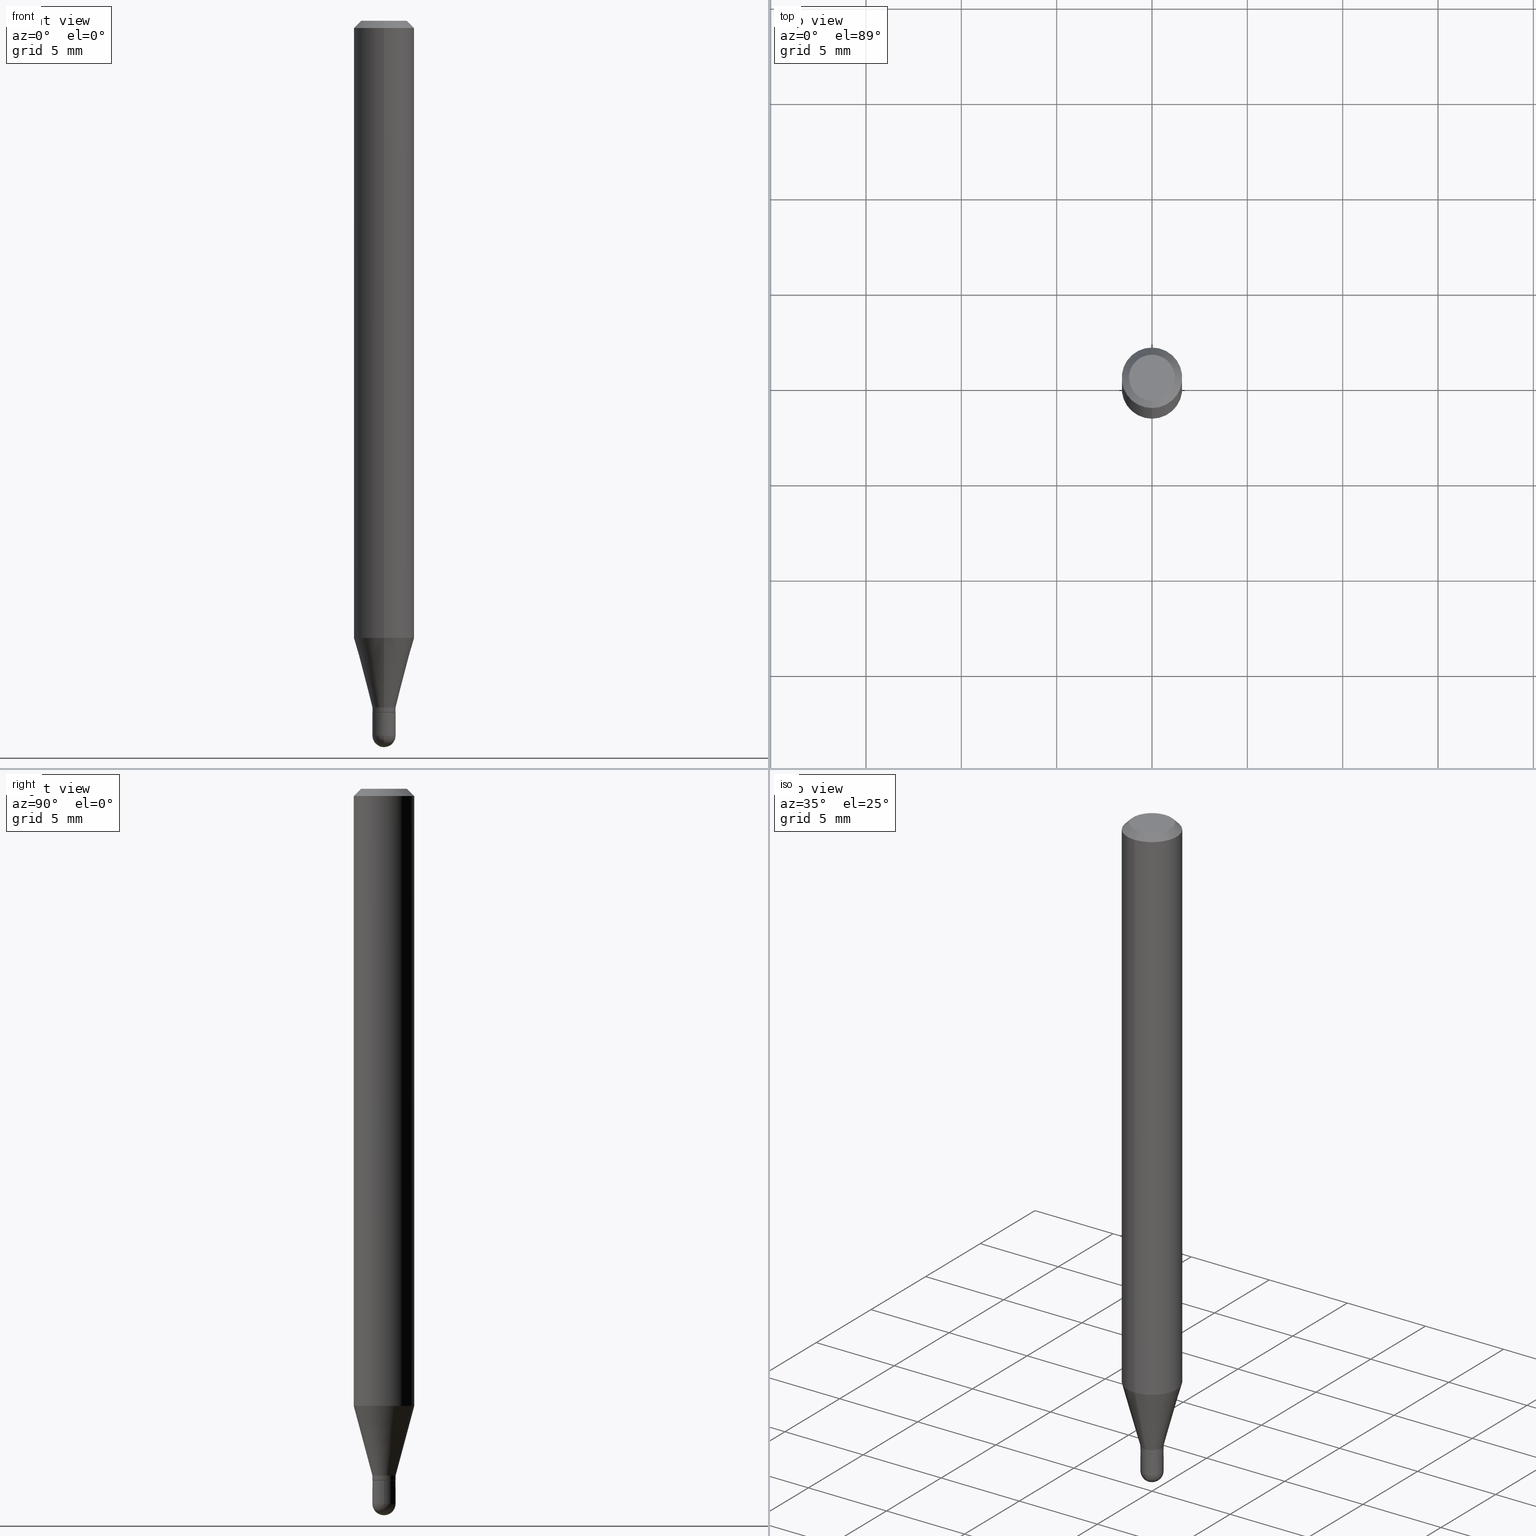
[diagram: canonical four-view strip — front | top / right | iso, engineering-drawing reading convention]
A machine part, canonical four-view strip (front | top / right | iso — engineering-drawing reading convention). The complete STEP part file that produces these views, byte-faithful:
ISO-10303-21;
HEADER;
FILE_DESCRIPTION (( 'STEP AP203' ),
    '1' );
FILE_NAME ('00783.STEP',
    '2024-03-07T18:20:18',
    ( '' ),
    ( '' ),
    'SwSTEP 2.0',
    'SolidWorks 2023',
    '' );
FILE_SCHEMA (( 'CONFIG_CONTROL_DESIGN' ));
ENDSEC;

DATA;
#1 = CARTESIAN_POINT ( 'NONE',  ( 3.492147879207516630E-29, -4.985808967686983151E-15, -1.428000000000000158 ) ) ;
#2 = EDGE_CURVE ( 'NONE', #256, #21, #188, .T. ) ;
#3 = PLANE ( 'NONE',  #389 ) ;
#4 = LINE ( 'NONE', #446, #461 ) ;
#5 = AXIS2_PLACEMENT_3D ( 'NONE', #249, #132, #172 ) ;
#6 = CARTESIAN_POINT ( 'NONE',  ( 0.000000000000000000, 0.000000000000000000, 0.000000000000000000 ) ) ;
#7 = CARTESIAN_POINT ( 'NONE',  ( -3.773273898774340269E-16, -0.04749999999999999362, 1.569832887530797755E-16 ) ) ;
#8 = ORIENTED_EDGE ( 'NONE', *, *, #218, .F. ) ;
#9 = CALENDAR_DATE ( 2024, 7, 3 ) ;
#10 = DIRECTION ( 'NONE',  ( -6.982962677686265922E-15, -1.000000000000000000, 3.483106191921935554E-15 ) ) ;
#11 = CARTESIAN_POINT ( 'NONE',  ( 3.668222562192771468E-31, -5.237194293788850043E-17, -0.01500000000000000812 ) ) ;
#12 = ORIENTED_EDGE ( 'NONE', *, *, #257, .T. ) ;
#13 = VECTOR ( 'NONE', #28, 39.37007874015748143 ) ;
#14 = MANIFOLD_SOLID_BREP ( 'Body-Move/Copy2[2]', #477 ) ;
#15 = LINE ( 'NONE', #206, #374 ) ;
#16 = FACE_OUTER_BOUND ( 'NONE', #269, .T. ) ;
#17 = ORIENTED_EDGE ( 'NONE', *, *, #38, .T. ) ;
#18 = APPROVAL_STATUS ( 'not_yet_approved' ) ;
#19 = DIRECTION ( 'NONE',  ( -2.445468806185136597E-29, 3.491481338843145583E-15, 1.000000000000000000 ) ) ;
#20 = LENGTH_MEASURE_WITH_UNIT ( LENGTH_MEASURE( 0.02539999999999999897 ), #294 );
#21 = VERTEX_POINT ( 'NONE', #304 ) ;
#22 = DATE_AND_TIME ( #369, #254 ) ;
#23 = EDGE_CURVE ( 'NONE', #282, #259, #124, .T. ) ;
#24 = ORIENTED_EDGE ( 'NONE', *, *, #141, .T. ) ;
#25 = AXIS2_PLACEMENT_3D ( 'NONE', #360, #240, #355 ) ;
#26 = EDGE_CURVE ( 'NONE', #256, #50, #342, .T. ) ;
#27 = MECHANICAL_CONTEXT ( 'NONE', #128, 'mechanical' ) ;
#28 = DIRECTION ( 'NONE',  ( -4.937700262164674260E-15, -0.7071067811865632269, 0.7071067811865319186 ) ) ;
#29 = DIRECTION ( 'NONE',  ( -2.445481708128512584E-29, 3.491462862525897925E-15, 1.000000000000000000 ) ) ;
#30 = APPROVAL_DATE_TIME ( #378, #314 ) ;
#31 = ORIENTED_EDGE ( 'NONE', *, *, #287, .T. ) ;
#32 = FACE_OUTER_BOUND ( 'NONE', #216, .T. ) ;
#33 = DIRECTION ( 'NONE',  ( 1.000000000000000000, -6.982962677686250144E-15, 0.000000000000000000 ) ) ;
#34 = AXIS2_PLACEMENT_3D ( 'NONE', #272, #434, #276 ) ;
#35 = ORGANIZATION ( 'UNSPECIFIED', 'UNSPECIFIED', '' ) ;
#36 = ORIENTED_EDGE ( 'NONE', *, *, #339, .F. ) ;
#37 = DIRECTION ( 'NONE',  ( -2.445481708128512584E-29, 3.491462862525897925E-15, 1.000000000000000000 ) ) ;
#38 = EDGE_CURVE ( 'NONE', #138, #482, #98, .T. ) ;
#39 = DIRECTION ( 'NONE',  ( -2.445481708128512584E-29, 3.491462862525897925E-15, 1.000000000000000000 ) ) ;
#40 = AXIS2_PLACEMENT_3D ( 'NONE', #416, #62, #267 ) ;
#41 = CARTESIAN_POINT ( 'NONE',  ( 3.667177009730690077E-29, -5.238691584423694948E-15, -1.500000000000000222 ) ) ;
#42 = CARTESIAN_POINT ( 'NONE',  ( 0.02400000000000000397, -1.675911042644704316E-16, 1.170282426191024667E-30 ) ) ;
#43 = EDGE_CURVE ( 'NONE', #21, #226, #408, .T. ) ;
#44 = DIRECTION ( 'NONE',  ( 6.982962677686265922E-15, 1.000000000000000000, -3.491462862525897925E-15 ) ) ;
#45 = CIRCLE ( 'NONE', #79, 0.02400000000000000397 ) ;
#46 = DIRECTION ( 'NONE',  ( 1.000000000000000000, -6.982962677686266711E-15, 4.876176775795935232E-29 ) ) ;
#47 = ORIENTED_EDGE ( 'NONE', *, *, #341, .F. ) ;
#48 = SECURITY_CLASSIFICATION ( '', '', #300 ) ;
#49 = DIRECTION ( 'NONE',  ( -1.000000000000000000, 6.982962677686265922E-15, -4.876176775795935793E-29 ) ) ;
#50 = VERTEX_POINT ( 'NONE', #313 ) ;
#51 = DIRECTION ( 'NONE',  ( -2.445481708128512584E-29, 3.491462862525897925E-15, 1.000000000000000000 ) ) ;
#52 = DIRECTION ( 'NONE',  ( 4.937700262164548042E-15, 0.7071067811865451302, -0.7071067811865499042 ) ) ;
#53 = ORIENTED_EDGE ( 'NONE', *, *, #119, .T. ) ;
#54 = CARTESIAN_POINT ( 'NONE',  ( 2.166989570604911121E-46, -3.093854100032544712E-32, -8.861197216900356760E-18 ) ) ;
#55 = ORIENTED_EDGE ( 'NONE', *, *, #23, .T. ) ;
#56 = PERSON_AND_ORGANIZATION ( #84, #35 ) ;
#57 = DIRECTION ( 'NONE',  ( -2.445468806185136597E-29, 3.491481338843145583E-15, 1.000000000000000000 ) ) ;
#58 = PERSON_AND_ORGANIZATION_ROLE ( 'classification_officer' ) ;
#59 = CARTESIAN_POINT ( 'NONE',  ( 0.000000000000000000, 0.000000000000000000, 0.000000000000000000 ) ) ;
#60 = ORIENTED_EDGE ( 'NONE', *, *, #43, .F. ) ;
#61 = SHAPE_DEFINITION_REPRESENTATION ( #175, #292 ) ;
#62 = DIRECTION ( 'NONE',  ( -2.445468806185136597E-29, 3.491481338843145583E-15, 1.000000000000000000 ) ) ;
#63 = AXIS2_PLACEMENT_3D ( 'NONE', #238, #387, #316 ) ;
#64 = VECTOR ( 'NONE', #367, 39.37007874015748143 ) ;
#65 = APPROVAL_STATUS ( 'not_yet_approved' ) ;
#66 = EDGE_CURVE ( 'NONE', #217, #449, #442, .T. ) ;
#67 = ORIENTED_EDGE ( 'NONE', *, *, #76, .T. ) ;
#68 =( CONVERSION_BASED_UNIT ( 'INCH', #20 ) LENGTH_UNIT ( ) NAMED_UNIT ( #137 ) );
#69 = ORIENTED_EDGE ( 'NONE', *, *, #324, .F. ) ;
#70 = ADVANCED_FACE ( 'NONE', ( #81 ), #166, .T. ) ;
#71 = FACE_OUTER_BOUND ( 'NONE', #295, .T. ) ;
#72 = EDGE_LOOP ( 'NONE', ( #245, #67, #17, #485 ) ) ;
#73 = CARTESIAN_POINT ( 'NONE',  ( -1.675911042644352041E-16, -0.02400000000000487854, -1.417999999999999927 ) ) ;
#74 = AXIS2_PLACEMENT_3D ( 'NONE', #54, #125, #398 ) ;
#75 = FACE_OUTER_BOUND ( 'NONE', #451, .T. ) ;
#76 = EDGE_CURVE ( 'NONE', #480, #138, #333, .T. ) ;
#77 = DIRECTION ( 'NONE',  ( 5.024295867788190974E-15, 0.7071067811865681119, 0.7071067811865270336 ) ) ;
#78 = DIRECTION ( 'NONE',  ( -6.982962677686265133E-15, -1.000000000000000000, 0.000000000000000000 ) ) ;
#79 = AXIS2_PLACEMENT_3D ( 'NONE', #509, #231, #151 ) ;
#80 = CIRCLE ( 'NONE', #113, 0.02400000000000000397 ) ;
#81 = FACE_OUTER_BOUND ( 'NONE', #376, .T. ) ;
#82 = ADVANCED_FACE ( 'NONE', ( #508 ), #3, .F. ) ;
#83 = CARTESIAN_POINT ( 'NONE',  ( 3.467693062126230447E-29, -4.950894339061723592E-15, -1.417999999999999927 ) ) ;
#84 = PERSON ( 'UNSPECIFIED', 'UNSPECIFIED', 'UNSPECIFIED', ('UNSPECIFIED'), ('UNSPECIFIED'), ('UNSPECIFIED') ) ;
#85 = AXIS2_PLACEMENT_3D ( 'NONE', #1, #198, #430 ) ;
#86 = CARTESIAN_POINT ( 'NONE',  ( 3.073097332162760452E-16, 0.02399999999999497674, -1.417999999999999927 ) ) ;
#87 = EDGE_LOOP ( 'NONE', ( #163, #168, #368, #466 ) ) ;
#88 = CIRCLE ( 'NONE', #362, 0.02399999999999992764 ) ;
#89 = LINE ( 'NONE', #401, #144 ) ;
#90 = DIRECTION ( 'NONE',  ( -2.445481708128512584E-29, 3.491462862525897925E-15, 1.000000000000000000 ) ) ;
#91 = DIRECTION ( 'NONE',  ( -2.445481708128512584E-29, 3.491462862525897925E-15, 1.000000000000000000 ) ) ;
#92 = EDGE_LOOP ( 'NONE', ( #134, #147, #187, #344 ) ) ;
#93 = CARTESIAN_POINT ( 'NONE',  ( 3.607459558835231439E-29, -5.156365608450436393E-15, -1.475999999999999979 ) ) ;
#94 = ORIENTED_EDGE ( 'NONE', *, *, #2, .T. ) ;
#95 = CIRCLE ( 'NONE', #135, 0.02399999999999992764 ) ;
#96 = AXIS2_PLACEMENT_3D ( 'NONE', #327, #90, #479 ) ;
#97 = LINE ( 'NONE', #258, #64 ) ;
#98 = LINE ( 'NONE', #220, #13 ) ;
#99 = APPLICATION_PROTOCOL_DEFINITION ( 'international standard', 'config_control_design', 1994, #128 ) ;
#100 = ORIENTED_EDGE ( 'NONE', *, *, #388, .T. ) ;
#101 = VERTEX_POINT ( 'NONE', #148 ) ;
#102 = CALENDAR_DATE ( 2024, 7, 3 ) ;
#103 = AXIS2_PLACEMENT_3D ( 'NONE', #83, #427, #78 ) ;
#104 = CONICAL_SURFACE ( 'NONE', #5, 0.02350000000000000352, 0.7853981633974739252 ) ;
#105 = LOCAL_TIME ( 13, 20, 18.00000000000000000, #415 ) ;
#106 = DIRECTION ( 'NONE',  ( 1.000000000000000000, -6.982962677686265922E-15, 4.883557194083112340E-29 ) ) ;
#107 = DATE_AND_TIME ( #9, #354 ) ;
#108 = CARTESIAN_POINT ( 'NONE',  ( 3.492147879207516630E-29, -4.985808967686983151E-15, -1.428000000000000158 ) ) ;
#109 = ORIENTED_EDGE ( 'NONE', *, *, #473, .F. ) ;
#110 = DIRECTION ( 'NONE',  ( -6.982962677686265133E-15, -1.000000000000000000, 0.000000000000000000 ) ) ;
#111 = DIRECTION ( 'NONE',  ( 2.445481708128512303E-29, -3.491462862525897925E-15, -1.000000000000000000 ) ) ;
#112 = AXIS2_PLACEMENT_3D ( 'NONE', #423, #382, #491 ) ;
#113 = AXIS2_PLACEMENT_3D ( 'NONE', #288, #19, #403 ) ;
#114 = CARTESIAN_POINT ( 'NONE',  ( 0.02400000000000000397, -5.237222008264717388E-15, -1.475999999999999979 ) ) ;
#115 = DIRECTION ( 'NONE',  ( -2.445468806185136877E-29, 3.491481338843145188E-15, 1.000000000000000000 ) ) ;
#116 = EDGE_CURVE ( 'NONE', #253, #101, #426, .T. ) ;
#117 = CARTESIAN_POINT ( 'NONE',  ( 1.705302565824234812E-16, 0.02399999999999992764, -8.379510870062129501E-17 ) ) ;
#118 = CLOSED_SHELL ( 'NONE', ( #483, #406, #444, #511, #431 ) ) ;
#119 = EDGE_CURVE ( 'NONE', #482, #340, #350, .T. ) ;
#120 = DIRECTION ( 'NONE',  ( -6.982962677686265133E-15, -1.000000000000000000, 0.000000000000000000 ) ) ;
#121 = CYLINDRICAL_SURFACE ( 'NONE', #235, 0.06250000000000000000 ) ;
#122 = DIRECTION ( 'NONE',  ( -2.445468806185136597E-29, 3.491481338843145583E-15, 1.000000000000000000 ) ) ;
#123 = ORIENTED_EDGE ( 'NONE', *, *, #473, .T. ) ;
#124 = CIRCLE ( 'NONE', #40, 0.02400000000000000050 ) ;
#125 = DIRECTION ( 'NONE',  ( -2.445481708128512584E-29, 3.491462862525897925E-15, 1.000000000000000000 ) ) ;
#126 = ORIENTED_EDGE ( 'NONE', *, *, #192, .T. ) ;
#127 = LOCAL_TIME ( 13, 20, 18.00000000000000000, #223 ) ;
#128 = APPLICATION_CONTEXT ( 'configuration controlled 3d designs of mechanical parts and assemblies' ) ;
#129 = CARTESIAN_POINT ( 'NONE',  ( -0.02400000000000000050, -4.899100647417823327E-15, -1.428000000000000158 ) ) ;
#130 = CARTESIAN_POINT ( 'NONE',  ( 3.609511957929261635E-29, -5.153426456132482850E-15, -1.475999999999999979 ) ) ;
#131 = ADVANCED_FACE ( 'NONE', ( #75 ), #201, .T. ) ;
#132 = DIRECTION ( 'NONE',  ( -2.445481708128512584E-29, 3.491462862525897925E-15, 1.000000000000000000 ) ) ;
#133 =( NAMED_UNIT ( * ) PLANE_ANGLE_UNIT ( ) SI_UNIT ( $, .RADIAN. ) );
#134 = ORIENTED_EDGE ( 'NONE', *, *, #266, .F. ) ;
#135 = AXIS2_PLACEMENT_3D ( 'NONE', #230, #310, #120 ) ;
#136 = AXIS2_PLACEMENT_3D ( 'NONE', #130, #122, #487 ) ;
#137 = DIMENSIONAL_EXPONENTS ( 1.000000000000000000, 0.000000000000000000, 0.000000000000000000, 0.000000000000000000, 0.000000000000000000, 0.000000000000000000, 0.000000000000000000 ) ;
#138 = VERTEX_POINT ( 'NONE', #351 ) ;
#139 = CALENDAR_DATE ( 2024, 7, 3 ) ;
#140 = ORIENTED_EDGE ( 'NONE', *, *, #433, .F. ) ;
#141 = EDGE_CURVE ( 'NONE', #482, #323, #317, .T. ) ;
#142 = ORIENTED_EDGE ( 'NONE', *, *, #153, .T. ) ;
#143 = COORDINATED_UNIVERSAL_TIME_OFFSET ( 5, 0, .BEHIND. ) ;
#144 = VECTOR ( 'NONE', #51, 39.37007874015748143 ) ;
#145 = AXIS2_PLACEMENT_3D ( 'NONE', #6, #57, #46 ) ;
#146 = ORIENTED_EDGE ( 'NONE', *, *, #418, .T. ) ;
#147 = ORIENTED_EDGE ( 'NONE', *, *, #341, .T. ) ;
#148 = CARTESIAN_POINT ( 'NONE',  ( -4.364351673553605587E-16, -0.06250000000000446865, -1.274316043908598095 ) ) ;
#149 = VECTOR ( 'NONE', #321, 39.37007874015748143 ) ;
#150 = CIRCLE ( 'NONE', #96, 0.02399999999999992764 ) ;
#151 = DIRECTION ( 'NONE',  ( 1.000000000000000000, -6.982962677686250144E-15, 0.000000000000000000 ) ) ;
#152 = DIRECTION ( 'NONE',  ( -6.982962677686265133E-15, -1.000000000000000000, 3.491462862525897925E-15 ) ) ;
#153 = EDGE_CURVE ( 'NONE', #323, #482, #95, .T. ) ;
#154 = DIRECTION ( 'NONE',  ( -2.445481708128512584E-29, 3.491462862525897925E-15, 1.000000000000000000 ) ) ;
#155 = APPROVAL_PERSON_ORGANIZATION ( #337, #314, #493 ) ;
#156 = CARTESIAN_POINT ( 'NONE',  ( 3.316907271900976096E-16, 0.04749999999999999362, -1.702750845784303414E-16 ) ) ;
#157 = DIRECTION ( 'NONE',  ( 6.982962677686265922E-15, 1.000000000000000000, -3.483106191921935554E-15 ) ) ;
#158 = DIRECTION ( 'NONE',  ( -2.445481708128512584E-29, 3.491462862525897925E-15, 1.000000000000000000 ) ) ;
#159 = SPHERICAL_SURFACE ( 'NONE', #318, 0.02400000000000003866 ) ;
#160 = ORIENTED_EDGE ( 'NONE', *, *, #418, .F. ) ;
#161 = DIRECTION ( 'NONE',  ( 1.839019923739599921E-15, 0.2588190451025249028, 0.9659258262890670910 ) ) ;
#162 = CARTESIAN_POINT ( 'NONE',  ( 3.492129455232375114E-29, -4.985835351868012196E-15, -1.428000000000000158 ) ) ;
#163 = ORIENTED_EDGE ( 'NONE', *, *, #287, .F. ) ;
#164 = APPROVAL ( #18, 'UNSPECIFIED' ) ;
#165 = VECTOR ( 'NONE', #393, 39.37007874015748143 ) ;
#166 = CONICAL_SURFACE ( 'NONE', #103, 0.02399999999999992764, 0.2617993877991502405 ) ;
#167 = DIRECTION ( 'NONE',  ( -1.000000000000000000, 6.982962677686265922E-15, -4.883557194083112901E-29 ) ) ;
#168 = ORIENTED_EDGE ( 'NONE', *, *, #116, .T. ) ;
#169 = CIRCLE ( 'NONE', #234, 0.02350000000000000352 ) ;
#170 = CC_DESIGN_APPROVAL ( #164, ( #48 ) ) ;
#171 = EDGE_CURVE ( 'NONE', #480, #323, #274, .T. ) ;
#172 = DIRECTION ( 'NONE',  ( -6.982962677686265922E-15, -1.000000000000000000, 0.000000000000000000 ) ) ;
#173 = VERTEX_POINT ( 'NONE', #229 ) ;
#174 = APPROVAL_ROLE ( '' ) ;
#175 = PRODUCT_DEFINITION_SHAPE ( 'NONE', 'NONE',  #248 ) ;
#176 = DIRECTION ( 'NONE',  ( 1.000000000000000000, -6.982962677686266711E-15, 4.876176775795935232E-29 ) ) ;
#177 = CYLINDRICAL_SURFACE ( 'NONE', #501, 0.02400000000000000397 ) ;
#178 = ORIENTED_EDGE ( 'NONE', *, *, #506, .T. ) ;
#179 = COORDINATED_UNIVERSAL_TIME_OFFSET ( 5, 0, .BEHIND. ) ;
#180 = CIRCLE ( 'NONE', #390, 0.06250000000000000000 ) ;
#181 = APPLICATION_PROTOCOL_DEFINITION ( 'international standard', 'config_control_design', 1994, #232 ) ;
#182 = ORIENTED_EDGE ( 'NONE', *, *, #66, .F. ) ;
#183 = ADVANCED_FACE ( 'NONE', ( #476 ), #385, .T. ) ;
#184 = PERSON_AND_ORGANIZATION ( #84, #35 ) ;
#185 = ORIENTED_EDGE ( 'NONE', *, *, #66, .T. ) ;
#186 = MANIFOLD_SOLID_BREP ( 'Body-Move/Copy2[1]', #118 ) ;
#187 = ORIENTED_EDGE ( 'NONE', *, *, #277, .T. ) ;
#188 = CIRCLE ( 'NONE', #460, 0.02400000000000003866 ) ;
#189 = AXIS2_PLACEMENT_3D ( 'NONE', #298, #219, #462 ) ;
#190 = EDGE_CURVE ( 'NONE', #210, #259, #193, .T. ) ;
#191 = EDGE_LOOP ( 'NONE', ( #123, #55 ) ) ;
#192 = EDGE_CURVE ( 'NONE', #227, #173, #489, .T. ) ;
#193 = LINE ( 'NONE', #42, #395 ) ;
#194 = CARTESIAN_POINT ( 'NONE',  ( 3.840629472727447874E-16, 0.04749999999999999362, -1.747056831868805136E-16 ) ) ;
#195 = EDGE_CURVE ( 'NONE', #101, #227, #470, .T. ) ;
#196 = AXIS2_PLACEMENT_3D ( 'NONE', #391, #37, #152 ) ;
#197 = CIRCLE ( 'NONE', #74, 0.04749999999999999362 ) ;
#198 = DIRECTION ( 'NONE',  ( -2.445481708128512584E-29, 3.491462862525897925E-15, 1.000000000000000000 ) ) ;
#199 = DIRECTION ( 'NONE',  ( -2.445481708128512584E-29, 3.491462862525897925E-15, 1.000000000000000000 ) ) ;
#200 = DIRECTION ( 'NONE',  ( -6.982962677686265922E-15, -1.000000000000000000, 4.370956789862821150E-15 ) ) ;
#201 = CONICAL_SURFACE ( 'NONE', #63, 0.06250000000000000000, 0.7853981633974483900 ) ;
#202 = AXIS2_PLACEMENT_3D ( 'NONE', #322, #363, #49 ) ;
#203 = CARTESIAN_POINT ( 'NONE',  ( 3.116316575753167812E-29, -4.449227142427792447E-15, -1.274316043908598539 ) ) ;
#204 = DIRECTION ( 'NONE',  ( -2.445481708128512584E-29, 3.491462862525897925E-15, 1.000000000000000000 ) ) ;
#205 = ORIENTED_EDGE ( 'NONE', *, *, #190, .T. ) ;
#206 = CARTESIAN_POINT ( 'NONE',  ( 1.705302565824581664E-16, 0.02399999999999497674, -1.417999999999999927 ) ) ;
#207 = CARTESIAN_POINT ( 'NONE',  ( 3.492147879207516630E-29, -4.985808967686983151E-15, -1.428000000000000158 ) ) ;
#208 = CYLINDRICAL_SURFACE ( 'NONE', #334, 0.06250000000000000000 ) ;
#209 = DIRECTION ( 'NONE',  ( -6.982962677686265922E-15, -1.000000000000000000, 3.491462862525897925E-15 ) ) ;
#210 = VERTEX_POINT ( 'NONE', #114 ) ;
#211 = FACE_OUTER_BOUND ( 'NONE', #92, .T. ) ;
#212 = ORIENTED_EDGE ( 'NONE', *, *, #2, .F. ) ;
#213 = PERSON_AND_ORGANIZATION_ROLE ( 'creator' ) ;
#214 = FACE_OUTER_BOUND ( 'NONE', #87, .T. ) ;
#215 = DIRECTION ( 'NONE',  ( -2.445468806185136597E-29, 3.491481338843145583E-15, 1.000000000000000000 ) ) ;
#216 = EDGE_LOOP ( 'NONE', ( #250, #286 ) ) ;
#217 = VERTEX_POINT ( 'NONE', #194 ) ;
#218 = EDGE_CURVE ( 'NONE', #210, #21, #45, .T. ) ;
#219 = DIRECTION ( 'NONE',  ( 0.000000000000000000, 0.000000000000000000, 1.000000000000000000 ) ) ;
#220 = CARTESIAN_POINT ( 'NONE',  ( -1.640996229255923695E-16, -0.02350000000000498912, -1.428000000000000158 ) ) ;
#221 = CONICAL_SURFACE ( 'NONE', #435, 0.02350000000000000352, 0.7853981633974739252 ) ;
#222 = CC_DESIGN_PERSON_AND_ORGANIZATION_ASSIGNMENT ( #184, #265, ( #248 ) ) ;
#223 = COORDINATED_UNIVERSAL_TIME_OFFSET ( 5, 0, .BEHIND. ) ;
#224 = ORIENTED_EDGE ( 'NONE', *, *, #26, .F. ) ;
#225 = PERSON_AND_ORGANIZATION_ROLE ( 'design_supplier' ) ;
#226 = VERTEX_POINT ( 'NONE', #474 ) ;
#227 = VERTEX_POINT ( 'NONE', #472 ) ;
#228 = CC_DESIGN_APPROVAL ( #314, ( #248 ) ) ;
#229 = CARTESIAN_POINT ( 'NONE',  ( 4.440892098500939734E-16, 0.06249999999999995143, -0.01500000000000022669 ) ) ;
#230 = CARTESIAN_POINT ( 'NONE',  ( 3.490925138353452741E-29, -4.984063236255720015E-15, -1.427500000000000213 ) ) ;
#231 = DIRECTION ( 'NONE',  ( -2.445468806185136597E-29, 3.491481338843145583E-15, 1.000000000000000000 ) ) ;
#232 = APPLICATION_CONTEXT ( 'configuration controlled 3d designs of mechanical parts and assemblies' ) ;
#233 = AXIS2_PLACEMENT_3D ( 'NONE', #347, #346, #386 ) ;
#234 = AXIS2_PLACEMENT_3D ( 'NONE', #207, #91, #358 ) ;
#235 = AXIS2_PLACEMENT_3D ( 'NONE', #411, #204, #209 ) ;
#236 = APPROVAL_PERSON_ORGANIZATION ( #377, #164, #174 ) ;
#237 = CARTESIAN_POINT ( 'NONE',  ( 3.116316575753167812E-29, -4.449227142427792447E-15, -1.274316043908598539 ) ) ;
#238 = CARTESIAN_POINT ( 'NONE',  ( 3.668222562192771468E-31, -5.237194293788850043E-17, -0.01500000000000000812 ) ) ;
#239 = CARTESIAN_POINT ( 'NONE',  ( 0.000000000000000000, 0.000000000000000000, 0.000000000000000000 ) ) ;
#240 = DIRECTION ( 'NONE',  ( -2.445481708128512584E-29, 3.491462862525897925E-15, 1.000000000000000000 ) ) ;
#241 = ORIENTED_EDGE ( 'NONE', *, *, #429, .F. ) ;
#242 = APPROVAL ( #260, 'UNSPECIFIED' ) ;
#243 = CONICAL_SURFACE ( 'NONE', #25, 0.02399999999999992764, 0.2617993877991502405 ) ;
#244 = FACE_OUTER_BOUND ( 'NONE', #373, .T. ) ;
#245 = ORIENTED_EDGE ( 'NONE', *, *, #171, .F. ) ;
#246 = CARTESIAN_POINT ( 'NONE',  ( 4.364351673553919652E-16, 0.06249999999999995143, -0.01500000000000022669 ) ) ;
#247 = ORIENTED_EDGE ( 'NONE', *, *, #38, .F. ) ;
#248 = PRODUCT_DEFINITION ( 'UNKNOWN', '', #293, #308 ) ;
#249 = CARTESIAN_POINT ( 'NONE',  ( 3.492147879207516630E-29, -4.985808967686983151E-15, -1.428000000000000158 ) ) ;
#250 = ORIENTED_EDGE ( 'NONE', *, *, #447, .F. ) ;
#251 = CARTESIAN_POINT ( 'NONE',  ( 0.02400000000000000050, -5.153426456132482850E-15, -1.428000000000000158 ) ) ;
#252 = FACE_OUTER_BOUND ( 'NONE', #356, .T. ) ;
#253 = VERTEX_POINT ( 'NONE', #273 ) ;
#254 = LOCAL_TIME ( 13, 20, 18.00000000000000000, #179 ) ;
#255 = CARTESIAN_POINT ( 'NONE',  ( 0.000000000000000000, 0.000000000000000000, 0.000000000000000000 ) ) ;
#256 = VERTEX_POINT ( 'NONE', #41 ) ;
#257 = EDGE_CURVE ( 'NONE', #323, #402, #432, .T. ) ;
#258 = CARTESIAN_POINT ( 'NONE',  ( -4.287811248607203282E-16, -0.06250000000000005551, -0.01499999999999979128 ) ) ;
#259 = VERTEX_POINT ( 'NONE', #251 ) ;
#260 = APPROVAL_STATUS ( 'not_yet_approved' ) ;
#261 = CC_DESIGN_DATE_AND_TIME_ASSIGNMENT ( #22, #365, ( #48 ) ) ;
#262 = DIRECTION ( 'NONE',  ( -6.982962677686265133E-15, -1.000000000000000000, 3.491462862525897925E-15 ) ) ;
#263 = ORIENTED_EDGE ( 'NONE', *, *, #277, .F. ) ;
#264 = CC_DESIGN_SECURITY_CLASSIFICATION ( #48, ( #293 ) ) ;
#265 = PERSON_AND_ORGANIZATION_ROLE ( 'creator' ) ;
#266 = EDGE_CURVE ( 'NONE', #402, #253, #15, .T. ) ;
#267 = DIRECTION ( 'NONE',  ( 1.000000000000000000, -6.982962677686251722E-15, 0.000000000000000000 ) ) ;
#268 = DIRECTION ( 'NONE',  ( -2.445468806185136597E-29, 3.491481338843145583E-15, 1.000000000000000000 ) ) ;
#269 = EDGE_LOOP ( 'NONE', ( #330, #383, #296, #247 ) ) ;
#270 = DIRECTION ( 'NONE',  ( -2.445481708128512584E-29, 3.491462862525897925E-15, 1.000000000000000000 ) ) ;
#271 = CC_DESIGN_APPROVAL ( #242, ( #293 ) ) ;
#272 = CARTESIAN_POINT ( 'NONE',  ( 2.166989570604911121E-46, -3.093854100032544712E-32, -8.861197216900356760E-18 ) ) ;
#273 = CARTESIAN_POINT ( 'NONE',  ( 4.440892098500935790E-16, 0.06249999999999552441, -1.274316043908598761 ) ) ;
#274 = LINE ( 'NONE', #436, #459 ) ;
#275 = AXIS2_PLACEMENT_3D ( 'NONE', #306, #381, #335 ) ;
#276 = DIRECTION ( 'NONE',  ( -6.982962677686266711E-15, -1.000000000000000000, 3.491462862525898320E-15 ) ) ;
#277 = EDGE_CURVE ( 'NONE', #340, #101, #410, .T. ) ;
#278 = FACE_OUTER_BOUND ( 'NONE', #364, .T. ) ;
#279 = CC_DESIGN_PERSON_AND_ORGANIZATION_ASSIGNMENT ( #56, #225, ( #293 ) ) ;
#280 = PRODUCT ( '00783', '00783', '', ( #27 ) ) ;
#281 = CARTESIAN_POINT ( 'NONE',  ( 3.492147879207516630E-29, -4.985808967686983151E-15, -1.428000000000000158 ) ) ;
#282 = VERTEX_POINT ( 'NONE', #129 ) ;
#283 = AXIS2_PLACEMENT_3D ( 'NONE', #237, #154, #200 ) ;
#284 = CIRCLE ( 'NONE', #443, 0.02400000000000000050 ) ;
#285 = DIRECTION ( 'NONE',  ( 1.000000000000000000, -6.982962677686251722E-15, 0.000000000000000000 ) ) ;
#286 = ORIENTED_EDGE ( 'NONE', *, *, #76, .F. ) ;
#287 = EDGE_CURVE ( 'NONE', #253, #173, #89, .T. ) ;
#288 = CARTESIAN_POINT ( 'NONE',  ( 3.609511957929261635E-29, -5.153426456132482850E-15, -1.475999999999999979 ) ) ;
#289 = DIRECTION ( 'NONE',  ( -6.982962677686265922E-15, -1.000000000000000000, 0.000000000000000000 ) ) ;
#290 = CARTESIAN_POINT ( 'NONE',  ( 1.687538997430584320E-16, 0.02349999999999501793, -1.428000000000000158 ) ) ;
#291 = ORIENTED_EDGE ( 'NONE', *, *, #433, .T. ) ;
#292 = ADVANCED_BREP_SHAPE_REPRESENTATION ( '00783', ( #186, #14, #189 ), #349 ) ;
#293 = PRODUCT_DEFINITION_FORMATION_WITH_SPECIFIED_SOURCE ( 'ANY', '', #280, .NOT_KNOWN. ) ;
#294 =( LENGTH_UNIT ( ) NAMED_UNIT ( * ) SI_UNIT ( $, .METRE. ) );
#295 = EDGE_LOOP ( 'NONE', ( #224, #94, #8, #69 ) ) ;
#296 = ORIENTED_EDGE ( 'NONE', *, *, #141, .F. ) ;
#297 = PRODUCT_RELATED_PRODUCT_CATEGORY ( 'detail', '', ( #280 ) ) ;
#298 = CARTESIAN_POINT ( 'NONE',  ( 0.000000000000000000, 0.000000000000000000, 0.000000000000000000 ) ) ;
#299 = EDGE_LOOP ( 'NONE', ( #185, #146 ) ) ;
#300 = SECURITY_CLASSIFICATION_LEVEL ( 'unclassified' ) ;
#301 = ADVANCED_FACE ( 'NONE', ( #214 ), #208, .T. ) ;
#302 = VECTOR ( 'NONE', #39, 39.37007874015748143 ) ;
#303 = PERSON_AND_ORGANIZATION ( #84, #35 ) ;
#304 = CARTESIAN_POINT ( 'NONE',  ( 1.675911042645066206E-16, 0.02399999999999486572, -1.475999999999999979 ) ) ;
#305 = CIRCLE ( 'NONE', #396, 0.06250000000000000000 ) ;
#306 = CARTESIAN_POINT ( 'NONE',  ( 3.607459558835231439E-29, -5.156365608450436393E-15, -1.475999999999999979 ) ) ;
#307 = CARTESIAN_POINT ( 'NONE',  ( 3.609511957929261635E-29, -5.153426456132482850E-15, -1.475999999999999979 ) ) ;
#308 = DESIGN_CONTEXT ( 'detailed design', #232, 'design' ) ;
#309 = CARTESIAN_POINT ( 'NONE',  ( 3.607459558835231439E-29, -5.156365608450436393E-15, -1.475999999999999979 ) ) ;
#310 = DIRECTION ( 'NONE',  ( -2.445481708128512584E-29, 3.491462862525897925E-15, 1.000000000000000000 ) ) ;
#311 = EDGE_CURVE ( 'NONE', #173, #227, #305, .T. ) ;
#312 = AXIS2_PLACEMENT_3D ( 'NONE', #11, #394, #157 ) ;
#313 = CARTESIAN_POINT ( 'NONE',  ( -1.705302565823881057E-16, -0.02400000000000517691, -1.475999999999999979 ) ) ;
#314 = APPROVAL ( #65, 'UNSPECIFIED' ) ;
#315 = CARTESIAN_POINT ( 'NONE',  ( -4.364351673553916201E-16, -0.06250000000000000000, 2.182164289078686203E-16 ) ) ;
#316 = DIRECTION ( 'NONE',  ( 6.982962677686265922E-15, 1.000000000000000000, -3.483106191921935554E-15 ) ) ;
#317 = CIRCLE ( 'NONE', #417, 0.02399999999999992764 ) ;
#318 = AXIS2_PLACEMENT_3D ( 'NONE', #93, #167, #481 ) ;
#319 = CYLINDRICAL_SURFACE ( 'NONE', #145, 0.02400000000000000397 ) ;
#320 = ORIENTED_EDGE ( 'NONE', *, *, #429, .T. ) ;
#321 = DIRECTION ( 'NONE',  ( -1.807323732225329745E-15, -0.2588190451025181305, 0.9659258262890689783 ) ) ;
#322 = CARTESIAN_POINT ( 'NONE',  ( 1.675911042645052894E-16, 0.02399999999999501490, -1.428000000000000158 ) ) ;
#323 = VERTEX_POINT ( 'NONE', #326 ) ;
#324 = EDGE_CURVE ( 'NONE', #50, #210, #80, .T. ) ;
#325 = DATE_TIME_ROLE ( 'creation_date' ) ;
#326 = CARTESIAN_POINT ( 'NONE',  ( 1.705302565824577966E-16, 0.02399999999999485878, -1.427500000000000213 ) ) ;
#327 = CARTESIAN_POINT ( 'NONE',  ( 3.467693062126230447E-29, -4.950894339061723592E-15, -1.417999999999999927 ) ) ;
#328 = ORIENTED_EDGE ( 'NONE', *, *, #119, .F. ) ;
#329 = FACE_OUTER_BOUND ( 'NONE', #191, .T. ) ;
#330 = ORIENTED_EDGE ( 'NONE', *, *, #447, .T. ) ;
#331 = DATE_AND_TIME ( #102, #105 ) ;
#332 = ORIENTED_EDGE ( 'NONE', *, *, #43, .T. ) ;
#333 = CIRCLE ( 'NONE', #85, 0.02350000000000000352 ) ;
#334 = AXIS2_PLACEMENT_3D ( 'NONE', #239, #437, #359 ) ;
#335 = DIRECTION ( 'NONE',  ( 6.982962677686265922E-15, 1.000000000000000000, 0.000000000000000000 ) ) ;
#336 = ORIENTED_EDGE ( 'NONE', *, *, #195, .F. ) ;
#337 = PERSON_AND_ORGANIZATION ( #84, #35 ) ;
#338 = DIRECTION ( 'NONE',  ( -2.445468806185136597E-29, 3.491481338843145583E-15, 1.000000000000000000 ) ) ;
#339 = EDGE_CURVE ( 'NONE', #101, #253, #180, .T. ) ;
#340 = VERTEX_POINT ( 'NONE', #73 ) ;
#341 = EDGE_CURVE ( 'NONE', #402, #340, #88, .T. ) ;
#342 = CIRCLE ( 'NONE', #112, 0.02400000000000003866 ) ;
#343 = DIRECTION ( 'NONE',  ( -2.445481708128512303E-29, 3.491462862525897925E-15, 1.000000000000000000 ) ) ;
#344 = ORIENTED_EDGE ( 'NONE', *, *, #116, .F. ) ;
#345 = EDGE_LOOP ( 'NONE', ( #24, #12, #241, #328 ) ) ;
#346 = DIRECTION ( 'NONE',  ( -2.445481708128512584E-29, 3.491462862525897925E-15, 1.000000000000000000 ) ) ;
#347 = CARTESIAN_POINT ( 'NONE',  ( 3.668222562192771468E-31, -5.237194293788850043E-17, -0.01500000000000000812 ) ) ;
#348 = CC_DESIGN_PERSON_AND_ORGANIZATION_ASSIGNMENT ( #303, #419, ( #280 ) ) ;
#349 =( GEOMETRIC_REPRESENTATION_CONTEXT ( 3 ) GLOBAL_UNCERTAINTY_ASSIGNED_CONTEXT ( ( #504 ) ) GLOBAL_UNIT_ASSIGNED_CONTEXT ( ( #68, #133, #372 ) ) REPRESENTATION_CONTEXT ( 'NONE', 'WORKASPACE' ) );
#350 = LINE ( 'NONE', #512, #165 ) ;
#351 = CARTESIAN_POINT ( 'NONE',  ( -1.640996229255923695E-16, -0.02350000000000498912, -1.428000000000000158 ) ) ;
#352 = DIRECTION ( 'NONE',  ( -6.982962677686265133E-15, -1.000000000000000000, 0.000000000000000000 ) ) ;
#353 = AXIS2_PLACEMENT_3D ( 'NONE', #307, #338, #33 ) ;
#354 = LOCAL_TIME ( 13, 20, 18.00000000000000000, #475 ) ;
#355 = DIRECTION ( 'NONE',  ( -6.982962677686265133E-15, -1.000000000000000000, 0.000000000000000000 ) ) ;
#356 = EDGE_LOOP ( 'NONE', ( #332, #100, #109, #463, #494 ) ) ;
#357 = EDGE_CURVE ( 'NONE', #217, #173, #425, .T. ) ;
#358 = DIRECTION ( 'NONE',  ( -6.982962677686265922E-15, -1.000000000000000000, 0.000000000000000000 ) ) ;
#359 = DIRECTION ( 'NONE',  ( -6.982962677686265922E-15, -1.000000000000000000, 3.491462862525897925E-15 ) ) ;
#360 = CARTESIAN_POINT ( 'NONE',  ( 3.467693062126230447E-29, -4.950894339061723592E-15, -1.417999999999999927 ) ) ;
#361 = ORIENTED_EDGE ( 'NONE', *, *, #388, .F. ) ;
#362 = AXIS2_PLACEMENT_3D ( 'NONE', #505, #467, #110 ) ;
#363 = DIRECTION ( 'NONE',  ( 2.438088387897960049E-29, -3.491481338843145188E-15, -1.000000000000000000 ) ) ;
#364 = EDGE_LOOP ( 'NONE', ( #361, #291, #455, #205, #488 ) ) ;
#365 = DATE_TIME_ROLE ( 'classification_date' ) ;
#366 = CARTESIAN_POINT ( 'NONE',  ( 3.668222562192771468E-31, -5.237194293788850043E-17, -0.01500000000000000812 ) ) ;
#367 = DIRECTION ( 'NONE',  ( -4.851104656540964275E-15, -0.7071067811865500152, -0.7071067811865450192 ) ) ;
#368 = ORIENTED_EDGE ( 'NONE', *, *, #195, .T. ) ;
#369 = CALENDAR_DATE ( 2024, 7, 3 ) ;
#370 = ADVANCED_FACE ( 'NONE', ( #404 ), #121, .T. ) ;
#371 = DIRECTION ( 'NONE',  ( -6.982962677686265922E-15, -1.000000000000000000, 4.370956789862821150E-15 ) ) ;
#372 =( NAMED_UNIT ( * ) SI_UNIT ( $, .STERADIAN. ) SOLID_ANGLE_UNIT ( ) );
#373 = EDGE_LOOP ( 'NONE', ( #212, #424, #140, #60 ) ) ;
#374 = VECTOR ( 'NONE', #161, 39.37007874015748143 ) ;
#375 = VECTOR ( 'NONE', #52, 39.37007874015748143 ) ;
#376 = EDGE_LOOP ( 'NONE', ( #320, #412, #36, #263 ) ) ;
#377 = PERSON_AND_ORGANIZATION ( #84, #35 ) ;
#378 = DATE_AND_TIME ( #139, #127 ) ;
#379 = DIRECTION ( 'NONE',  ( 6.982962677686265922E-15, 1.000000000000000000, 0.000000000000000000 ) ) ;
#380 = CC_DESIGN_PERSON_AND_ORGANIZATION_ASSIGNMENT ( #413, #58, ( #48 ) ) ;
#381 = DIRECTION ( 'NONE',  ( -1.000000000000000000, 6.982962677686265922E-15, -4.883557194083112901E-29 ) ) ;
#382 = DIRECTION ( 'NONE',  ( -1.000000000000000000, 7.105427357601001070E-15, -4.926315508542082329E-29 ) ) ;
#383 = ORIENTED_EDGE ( 'NONE', *, *, #171, .T. ) ;
#384 = CIRCLE ( 'NONE', #136, 0.02400000000000000397 ) ;
#385 = CYLINDRICAL_SURFACE ( 'NONE', #196, 0.02399999999999992764 ) ;
#386 = DIRECTION ( 'NONE',  ( -6.982962677686265922E-15, -1.000000000000000000, 3.483106191921935554E-15 ) ) ;
#387 = DIRECTION ( 'NONE',  ( 2.445481708128512584E-29, -3.491462862525897925E-15, -1.000000000000000000 ) ) ;
#388 = EDGE_CURVE ( 'NONE', #226, #282, #4, .T. ) ;
#389 = AXIS2_PLACEMENT_3D ( 'NONE', #156, #111, #44 ) ;
#390 = AXIS2_PLACEMENT_3D ( 'NONE', #203, #29, #371 ) ;
#391 = CARTESIAN_POINT ( 'NONE',  ( 0.000000000000000000, 0.000000000000000000, 0.000000000000000000 ) ) ;
#392 = CC_DESIGN_DATE_AND_TIME_ASSIGNMENT ( #107, #325, ( #248 ) ) ;
#393 = DIRECTION ( 'NONE',  ( -2.445481708128512584E-29, 3.491462862525897925E-15, 1.000000000000000000 ) ) ;
#394 = DIRECTION ( 'NONE',  ( 2.445481708128512584E-29, -3.491462862525897925E-15, -1.000000000000000000 ) ) ;
#395 = VECTOR ( 'NONE', #115, 39.37007874015748143 ) ;
#396 = AXIS2_PLACEMENT_3D ( 'NONE', #366, #158, #10 ) ;
#397 = ADVANCED_FACE ( 'NONE', ( #211 ), #243, .T. ) ;
#398 = DIRECTION ( 'NONE',  ( -6.982962677686266711E-15, -1.000000000000000000, 3.491462862525898320E-15 ) ) ;
#399 = ORIENTED_EDGE ( 'NONE', *, *, #311, .T. ) ;
#400 = ADVANCED_FACE ( 'NONE', ( #478 ), #471, .T. ) ;
#401 = CARTESIAN_POINT ( 'NONE',  ( 4.440892098500625669E-16, 0.06250000000000000000, -2.182164289078686203E-16 ) ) ;
#402 = VERTEX_POINT ( 'NONE', #86 ) ;
#403 = DIRECTION ( 'NONE',  ( 1.000000000000000000, -6.982962677686250144E-15, 0.000000000000000000 ) ) ;
#404 = FACE_OUTER_BOUND ( 'NONE', #453, .T. ) ;
#405 = ORIENTED_EDGE ( 'NONE', *, *, #192, .F. ) ;
#406 = ADVANCED_FACE ( 'NONE', ( #244 ), #159, .T. ) ;
#407 = PERSON_AND_ORGANIZATION ( #84, #35 ) ;
#408 = CIRCLE ( 'NONE', #353, 0.02400000000000000397 ) ;
#409 = AXIS2_PLACEMENT_3D ( 'NONE', #108, #343, #454 ) ;
#410 = LINE ( 'NONE', #445, #149 ) ;
#411 = CARTESIAN_POINT ( 'NONE',  ( 0.000000000000000000, 0.000000000000000000, 0.000000000000000000 ) ) ;
#412 = ORIENTED_EDGE ( 'NONE', *, *, #266, .T. ) ;
#413 = PERSON_AND_ORGANIZATION ( #84, #35 ) ;
#414 = ORIENTED_EDGE ( 'NONE', *, *, #506, .F. ) ;
#415 = COORDINATED_UNIVERSAL_TIME_OFFSET ( 5, 0, .BEHIND. ) ;
#416 = CARTESIAN_POINT ( 'NONE',  ( 3.492129455232375114E-29, -4.985835351868012196E-15, -1.428000000000000158 ) ) ;
#417 = AXIS2_PLACEMENT_3D ( 'NONE', #468, #270, #352 ) ;
#418 = EDGE_CURVE ( 'NONE', #449, #217, #197, .T. ) ;
#419 = PERSON_AND_ORGANIZATION_ROLE ( 'design_owner' ) ;
#420 = ORIENTED_EDGE ( 'NONE', *, *, #357, .T. ) ;
#421 = APPROVAL_DATE_TIME ( #458, #242 ) ;
#422 = SPHERICAL_SURFACE ( 'NONE', #275, 0.02400000000000003866 ) ;
#423 = CARTESIAN_POINT ( 'NONE',  ( 3.607459558835231439E-29, -5.156365608450436393E-15, -1.475999999999999979 ) ) ;
#424 = ORIENTED_EDGE ( 'NONE', *, *, #26, .T. ) ;
#425 = LINE ( 'NONE', #246, #375 ) ;
#426 = CIRCLE ( 'NONE', #283, 0.06250000000000000000 ) ;
#427 = DIRECTION ( 'NONE',  ( -2.445481708128512584E-29, 3.491462862525897925E-15, 1.000000000000000000 ) ) ;
#428 = APPROVAL_PERSON_ORGANIZATION ( #499, #242, #495 ) ;
#429 = EDGE_CURVE ( 'NONE', #340, #402, #150, .T. ) ;
#430 = DIRECTION ( 'NONE',  ( -6.982962677686265922E-15, -1.000000000000000000, 0.000000000000000000 ) ) ;
#431 = ADVANCED_FACE ( 'NONE', ( #278 ), #319, .T. ) ;
#432 = LINE ( 'NONE', #117, #469 ) ;
#433 = EDGE_CURVE ( 'NONE', #226, #50, #384, .T. ) ;
#434 = DIRECTION ( 'NONE',  ( -2.445481708128512584E-29, 3.491462862525897925E-15, 1.000000000000000000 ) ) ;
#435 = AXIS2_PLACEMENT_3D ( 'NONE', #281, #440, #289 ) ;
#436 = CARTESIAN_POINT ( 'NONE',  ( 1.669775429036584265E-16, 0.02349999999999501793, -1.428000000000000158 ) ) ;
#437 = DIRECTION ( 'NONE',  ( -2.445481708128512584E-29, 3.491462862525897925E-15, 1.000000000000000000 ) ) ;
#438 = DIRECTION ( 'NONE',  ( -2.445468806185136877E-29, 3.491481338843145188E-15, 1.000000000000000000 ) ) ;
#439 = ADVANCED_FACE ( 'NONE', ( #484 ), #221, .T. ) ;
#440 = DIRECTION ( 'NONE',  ( -2.445481708128512584E-29, 3.491462862525897925E-15, 1.000000000000000000 ) ) ;
#441 = EDGE_LOOP ( 'NONE', ( #160, #178, #126, #498 ) ) ;
#442 = CIRCLE ( 'NONE', #34, 0.04749999999999999362 ) ;
#443 = AXIS2_PLACEMENT_3D ( 'NONE', #162, #215, #285 ) ;
#444 = ADVANCED_FACE ( 'NONE', ( #329 ), #448, .F. ) ;
#445 = CARTESIAN_POINT ( 'NONE',  ( -1.675911042644352041E-16, -0.02400000000000487854, -1.417999999999999927 ) ) ;
#446 = CARTESIAN_POINT ( 'NONE',  ( -0.02400000000000000397, 1.705302565824240728E-16, -1.180544421661177751E-30 ) ) ;
#447 = EDGE_CURVE ( 'NONE', #138, #480, #169, .T. ) ;
#448 = PLANE ( 'NONE',  #202 ) ;
#449 = VERTEX_POINT ( 'NONE', #7 ) ;
#450 = CARTESIAN_POINT ( 'NONE',  ( -1.675911042644355738E-16, -0.02400000000000499303, -1.427500000000000213 ) ) ;
#451 = EDGE_LOOP ( 'NONE', ( #414, #182, #420, #399 ) ) ;
#452 = FACE_OUTER_BOUND ( 'NONE', #345, .T. ) ;
#453 = EDGE_LOOP ( 'NONE', ( #503, #31, #405, #336 ) ) ;
#454 = DIRECTION ( 'NONE',  ( -6.982962677686265922E-15, -1.000000000000000000, 3.491462862525897925E-15 ) ) ;
#455 = ORIENTED_EDGE ( 'NONE', *, *, #324, .T. ) ;
#456 = ADVANCED_FACE ( 'NONE', ( #16 ), #104, .T. ) ;
#457 = EDGE_LOOP ( 'NONE', ( #507, #142, #53, #47 ) ) ;
#458 = DATE_AND_TIME ( #464, #490 ) ;
#459 = VECTOR ( 'NONE', #77, 39.37007874015748143 ) ;
#460 = AXIS2_PLACEMENT_3D ( 'NONE', #309, #106, #379 ) ;
#461 = VECTOR ( 'NONE', #438, 39.37007874015748143 ) ;
#462 = DIRECTION ( 'NONE',  ( 1.000000000000000000, 0.000000000000000000, 0.000000000000000000 ) ) ;
#463 = ORIENTED_EDGE ( 'NONE', *, *, #190, .F. ) ;
#464 = CALENDAR_DATE ( 2024, 7, 3 ) ;
#465 = PLANE ( 'NONE',  #409 ) ;
#466 = ORIENTED_EDGE ( 'NONE', *, *, #311, .F. ) ;
#467 = DIRECTION ( 'NONE',  ( -2.445481708128512584E-29, 3.491462862525897925E-15, 1.000000000000000000 ) ) ;
#468 = CARTESIAN_POINT ( 'NONE',  ( 3.490925138353452741E-29, -4.984063236255720015E-15, -1.427500000000000213 ) ) ;
#469 = VECTOR ( 'NONE', #199, 39.37007874015748143 ) ;
#470 = LINE ( 'NONE', #315, #302 ) ;
#471 = CONICAL_SURFACE ( 'NONE', #312, 0.06250000000000000000, 0.7853981633974483900 ) ;
#472 = CARTESIAN_POINT ( 'NONE',  ( -4.364351673553912750E-16, -0.06250000000000005551, -0.01499999999999979128 ) ) ;
#473 = EDGE_CURVE ( 'NONE', #259, #282, #284, .T. ) ;
#474 = CARTESIAN_POINT ( 'NONE',  ( -0.02400000000000000397, -4.899100647417823327E-15, -1.475999999999999979 ) ) ;
#475 = COORDINATED_UNIVERSAL_TIME_OFFSET ( 5, 0, .BEHIND. ) ;
#476 = FACE_OUTER_BOUND ( 'NONE', #457, .T. ) ;
#477 = CLOSED_SHELL ( 'NONE', ( #500, #456, #400, #370, #70, #397, #301, #131, #82, #496, #439, #183 ) ) ;
#478 = FACE_OUTER_BOUND ( 'NONE', #441, .T. ) ;
#479 = DIRECTION ( 'NONE',  ( -6.982962677686265133E-15, -1.000000000000000000, 0.000000000000000000 ) ) ;
#480 = VERTEX_POINT ( 'NONE', #290 ) ;
#481 = DIRECTION ( 'NONE',  ( 6.982962677686265922E-15, 1.000000000000000000, 0.000000000000000000 ) ) ;
#482 = VERTEX_POINT ( 'NONE', #450 ) ;
#483 = ADVANCED_FACE ( 'NONE', ( #252 ), #177, .T. ) ;
#484 = FACE_OUTER_BOUND ( 'NONE', #72, .T. ) ;
#485 = ORIENTED_EDGE ( 'NONE', *, *, #153, .F. ) ;
#486 = CC_DESIGN_PERSON_AND_ORGANIZATION_ASSIGNMENT ( #407, #213, ( #293 ) ) ;
#487 = DIRECTION ( 'NONE',  ( 1.000000000000000000, -6.982962677686250144E-15, 0.000000000000000000 ) ) ;
#488 = ORIENTED_EDGE ( 'NONE', *, *, #23, .F. ) ;
#489 = CIRCLE ( 'NONE', #233, 0.06250000000000000000 ) ;
#490 = LOCAL_TIME ( 13, 20, 18.00000000000000000, #143 ) ;
#491 = DIRECTION ( 'NONE',  ( -7.105427357600999492E-15, -1.000000000000000000, 0.000000000000000000 ) ) ;
#492 = APPROVAL_DATE_TIME ( #331, #164 ) ;
#493 = APPROVAL_ROLE ( '' ) ;
#494 = ORIENTED_EDGE ( 'NONE', *, *, #218, .T. ) ;
#495 = APPROVAL_ROLE ( '' ) ;
#496 = ADVANCED_FACE ( 'NONE', ( #32 ), #465, .F. ) ;
#497 = CYLINDRICAL_SURFACE ( 'NONE', #510, 0.02399999999999992764 ) ;
#498 = ORIENTED_EDGE ( 'NONE', *, *, #357, .F. ) ;
#499 = PERSON_AND_ORGANIZATION ( #84, #35 ) ;
#500 = ADVANCED_FACE ( 'NONE', ( #452 ), #497, .T. ) ;
#501 = AXIS2_PLACEMENT_3D ( 'NONE', #59, #268, #176 ) ;
#502 = DIRECTION ( 'NONE',  ( -2.445481708128512584E-29, 3.491462862525897925E-15, 1.000000000000000000 ) ) ;
#503 = ORIENTED_EDGE ( 'NONE', *, *, #339, .T. ) ;
#504 = UNCERTAINTY_MEASURE_WITH_UNIT (LENGTH_MEASURE( 1.000000000000000082E-05 ), #68, 'distance_accuracy_value', 'NONE');
#505 = CARTESIAN_POINT ( 'NONE',  ( 3.467693062126230447E-29, -4.950894339061723592E-15, -1.417999999999999927 ) ) ;
#506 = EDGE_CURVE ( 'NONE', #449, #227, #97, .T. ) ;
#507 = ORIENTED_EDGE ( 'NONE', *, *, #257, .F. ) ;
#508 = FACE_OUTER_BOUND ( 'NONE', #299, .T. ) ;
#509 = CARTESIAN_POINT ( 'NONE',  ( 3.609511957929261635E-29, -5.153426456132482850E-15, -1.475999999999999979 ) ) ;
#510 = AXIS2_PLACEMENT_3D ( 'NONE', #255, #502, #262 ) ;
#511 = ADVANCED_FACE ( 'NONE', ( #71 ), #422, .T. ) ;
#512 = CARTESIAN_POINT ( 'NONE',  ( -1.675911042644698646E-16, -0.02399999999999992764, 8.379510870062129501E-17 ) ) ;
ENDSEC;
END-ISO-10303-21;
